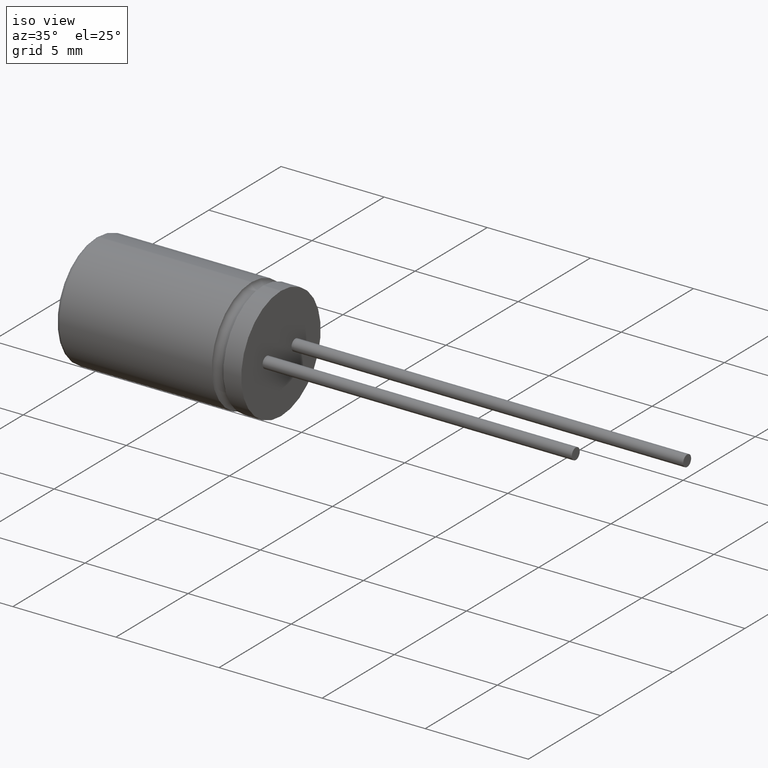
[diagram: clean part render]
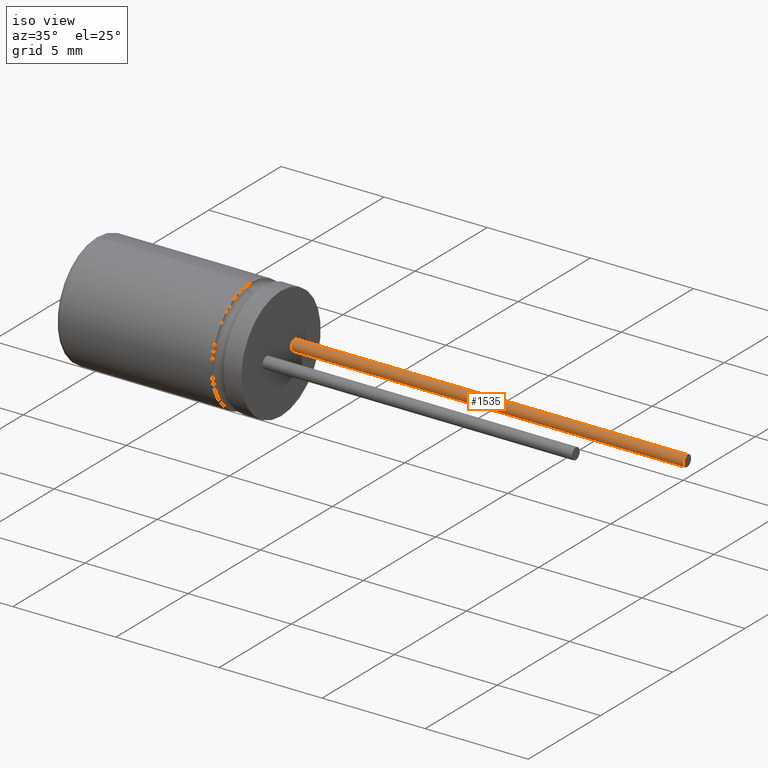
[diagram: same view with one face highlighted and labeled with its STEP entity id]
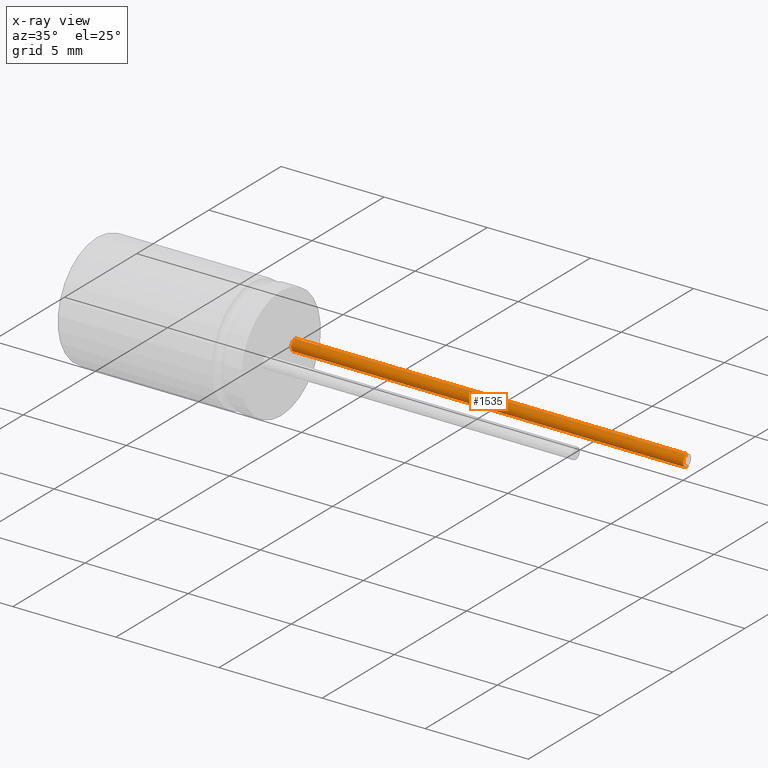
[diagram: x-ray of the same camera — body ghosted, the highlighted face saturated]
A machine part, iso view. The second image highlights one B-rep face of the part: STEP entity #1535.
The next image is the same camera in x-ray: the body ghosted, the highlighted face saturated — about 0% of this face is hidden behind the body in this view.
In plain terms, the highlighted cylindrical surface (edge-blend (fillet) strip) has radius 0.275 mm, axis along (-1, -0, -0).
Its self-contained STEP definition (entity closure, byte-faithful):
#34 = AXIS2_PLACEMENT_3D ( 'NONE', #884, #2990, #2725 ) ;
#73 = ORIENTED_EDGE ( 'NONE', *, *, #1232, .F. ) ;
#397 = EDGE_LOOP ( 'NONE', ( #73, #2222, #2039, #669 ) ) ;
#646 = DIRECTION ( 'NONE',  ( 1.000000000000000000, 0.0000000000000000000, 0.0000000000000000000 ) ) ;
#669 = ORIENTED_EDGE ( 'NONE', *, *, #1630, .T. ) ;
#701 = DIRECTION ( 'NONE',  ( -1.000000000000000000, -0.0000000000000000000, -0.0000000000000000000 ) ) ;
#877 = CARTESIAN_POINT ( 'NONE',  ( 27.99999999999999600, 1.000000000000000000, -0.2750000000000000200 ) ) ;
#884 = CARTESIAN_POINT ( 'NONE',  ( 27.99999999999999600, 1.000000000000000000, 0.0000000000000000000 ) ) ;
#1134 = AXIS2_PLACEMENT_3D ( 'NONE', #2027, #3351, #1759 ) ;
#1159 = CARTESIAN_POINT ( 'NONE',  ( 27.99999999999999600, 1.000000000000000000, 0.2750000000000000200 ) ) ;
#1225 = VECTOR ( 'NONE', #701, 1000.000000000000000 ) ;
#1232 = EDGE_CURVE ( 'NONE', #2178, #2343, #2855, .T. ) ;
#1245 = CARTESIAN_POINT ( 'NONE',  ( 9.000000000000000000, 1.000000000000000000, -0.2750000000000000200 ) ) ;
#1248 = VERTEX_POINT ( 'NONE', #1531 ) ;
#1332 = LINE ( 'NONE', #2834, #2792 ) ;
#1491 = AXIS2_PLACEMENT_3D ( 'NONE', #2831, #646, #2519 ) ;
#1512 = DIRECTION ( 'NONE',  ( -1.000000000000000000, -0.0000000000000000000, -0.0000000000000000000 ) ) ;
#1531 = CARTESIAN_POINT ( 'NONE',  ( 9.000000000000000000, 1.000000000000000000, 0.2750000000000000200 ) ) ;
#1535 = ADVANCED_FACE ( 'NONE', ( #2391 ), #2719, .T. ) ;
#1606 = EDGE_CURVE ( 'NONE', #2568, #2178, #2890, .T. ) ;
#1621 = CIRCLE ( 'NONE', #1491, 0.2750000000000000200 ) ;
#1630 = EDGE_CURVE ( 'NONE', #1248, #2343, #1621, .T. ) ;
#1759 = DIRECTION ( 'NONE',  ( 0.0000000000000000000, 0.0000000000000000000, -1.000000000000000000 ) ) ;
#2027 = CARTESIAN_POINT ( 'NONE',  ( 27.99999999999999600, 1.000000000000000000, 0.0000000000000000000 ) ) ;
#2039 = ORIENTED_EDGE ( 'NONE', *, *, #2234, .T. ) ;
#2178 = VERTEX_POINT ( 'NONE', #877 ) ;
#2222 = ORIENTED_EDGE ( 'NONE', *, *, #1606, .F. ) ;
#2234 = EDGE_CURVE ( 'NONE', #2568, #1248, #1332, .T. ) ;
#2343 = VERTEX_POINT ( 'NONE', #1245 ) ;
#2391 = FACE_OUTER_BOUND ( 'NONE', #397, .T. ) ;
#2519 = DIRECTION ( 'NONE',  ( 0.0000000000000000000, 0.0000000000000000000, -1.000000000000000000 ) ) ;
#2568 = VERTEX_POINT ( 'NONE', #1159 ) ;
#2719 = CYLINDRICAL_SURFACE ( 'NONE', #34, 0.2750000000000000200 ) ;
#2725 = DIRECTION ( 'NONE',  ( 0.0000000000000000000, 0.0000000000000000000, 1.000000000000000000 ) ) ;
#2792 = VECTOR ( 'NONE', #1512, 1000.000000000000000 ) ;
#2831 = CARTESIAN_POINT ( 'NONE',  ( 9.000000000000000000, 1.000000000000000000, 0.0000000000000000000 ) ) ;
#2834 = CARTESIAN_POINT ( 'NONE',  ( 27.99999999999999600, 1.000000000000000000, 0.2750000000000000200 ) ) ;
#2855 = LINE ( 'NONE', #3130, #1225 ) ;
#2890 = CIRCLE ( 'NONE', #1134, 0.2750000000000000200 ) ;
#2990 = DIRECTION ( 'NONE',  ( -1.000000000000000000, -0.0000000000000000000, -0.0000000000000000000 ) ) ;
#3130 = CARTESIAN_POINT ( 'NONE',  ( 27.99999999999999600, 1.000000000000000000, -0.2750000000000000200 ) ) ;
#3351 = DIRECTION ( 'NONE',  ( 1.000000000000000000, 0.0000000000000000000, 0.0000000000000000000 ) ) ;